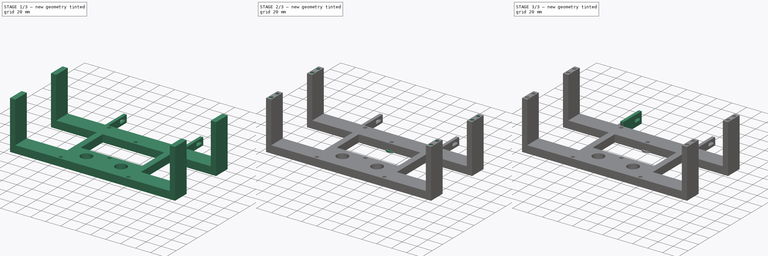
[diagram: build sequence overview — one tinted view per stage of 3, left to right]
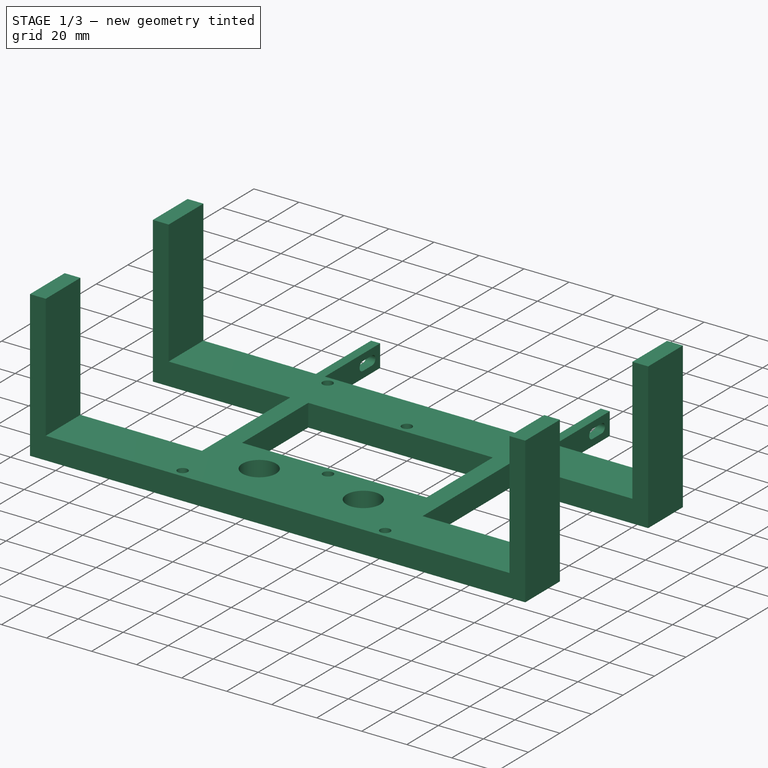
[diagram: stage 1 of 3 — iso view after this stage's code; geometry added in this stage tinted green]
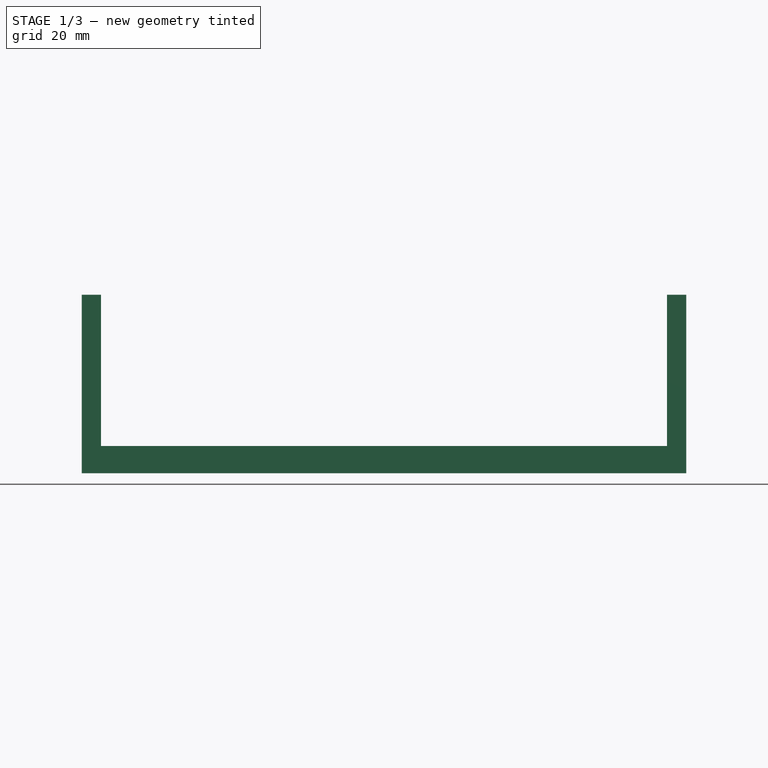
[diagram: stage 1 of 3 — front view after this stage's code; geometry added in this stage tinted green]
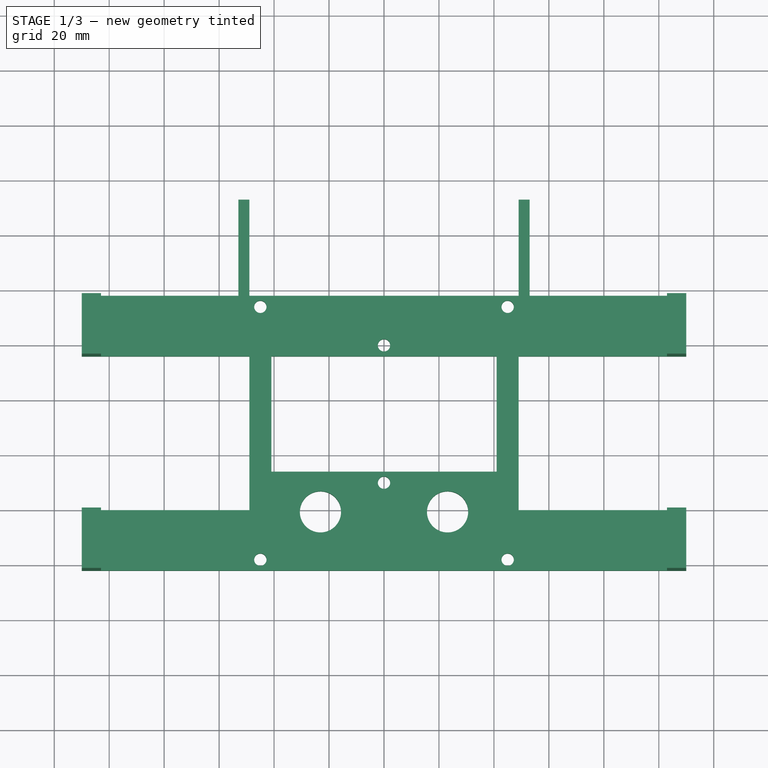
[diagram: stage 1 of 3 — top view after this stage's code; geometry added in this stage tinted green]
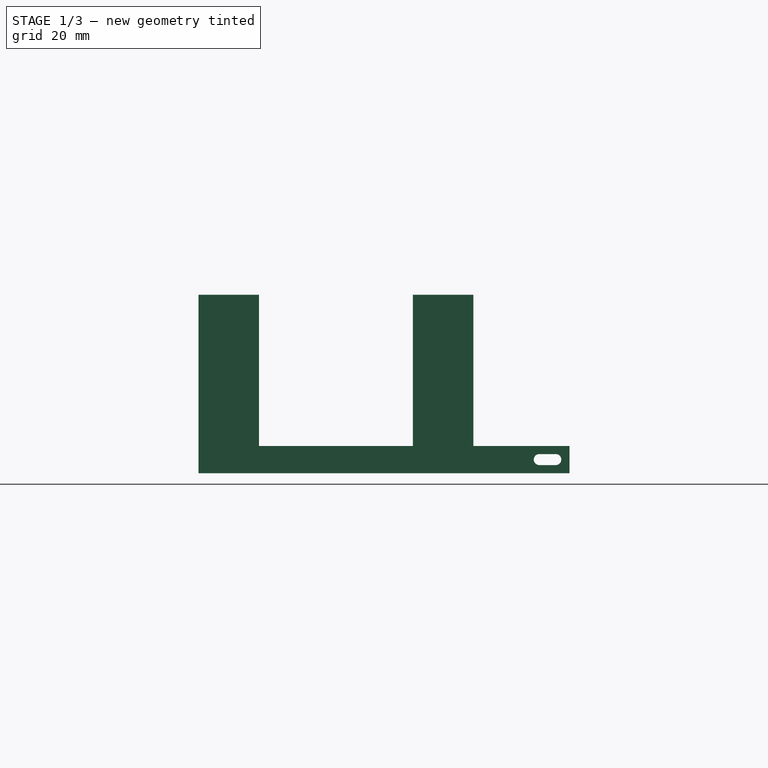
[diagram: stage 1 of 3 — right view after this stage's code; geometry added in this stage tinted green]
FCSTD DOCUMENT  (FreeCAD 0.21R33771 (Git))
Label: BodyMount
License: All rights reserved
LicenseURL: http://en.wikipedia.org/wiki/All_rights_reserved
objects: Sketcher::SketchObject×8, PartDesign::Pad×5, PartDesign::Pocket×3, PartDesign::Body×3, App::Part×3
note: 27 computed .brp shape members not serialized (recipe doc carries the construction recipe); baked Part::Feature solids carry a one-line shape summary decoded from their .brp

FEATURE [PartDesign::Body] Body001  label="BearingWasherBody"
  Group = -> [Sketch005,Pad003]
  Origin = -> Origin003
  Tip = -> Pad003
FEATURE [App::Part] Part001  label="BearingWasherPart"
  Group = -> [Body001]
  Origin = -> Origin002
FEATURE [Sketcher::SketchObject] Sketch006
  FullyConstrained = true
  MapMode = 5
  Support = -> [XY_Plane005]
  sketch-geometry (34):
    g0: LineSegment StartX=49 StartY=-82 StartZ=0 EndX=-49 EndY=-82 EndZ=0
    g1: LineSegment StartX=-49 StartY=18 StartZ=0 EndX=49 EndY=18 EndZ=0
    g2: Circle CenterX=-23.125 CenterY=-60.621 CenterZ=0 NormalX=0 NormalY=0 NormalZ=1 AngleXU=0 Radius=7.5
    g3: Circle CenterX=23.125 CenterY=-60.621 CenterZ=0 NormalX=0 NormalY=0 NormalZ=1 AngleXU=0 Radius=7.5
    g4: Circle CenterX=-45 CenterY=14 CenterZ=0 NormalX=0 NormalY=0 NormalZ=1 AngleXU=0 Radius=2.25
    g5: Circle CenterX=45 CenterY=14 CenterZ=0 NormalX=0 NormalY=0 NormalZ=1 AngleXU=0 Radius=2.25
    g6: Circle CenterX=45 CenterY=-78 CenterZ=0 NormalX=0 NormalY=0 NormalZ=1 AngleXU=0 Radius=2.25
    g7: Circle CenterX=-45 CenterY=-78 CenterZ=0 NormalX=0 NormalY=0 NormalZ=1 AngleXU=0 Radius=2.25
    g8: Circle CenterX=0 CenterY=0 CenterZ=0 NormalX=0 NormalY=0 NormalZ=1 AngleXU=0 Radius=2.25
    g9: Circle CenterX=0 CenterY=-50 CenterZ=0 NormalX=0 NormalY=0 NormalZ=1 AngleXU=0 Radius=2.25
    g10: LineSegment StartX=-41 StartY=-4 StartZ=0 EndX=41 EndY=-4 EndZ=0
    g11: LineSegment StartX=41 StartY=-4 StartZ=0 EndX=41 EndY=-46 EndZ=0
    g12: LineSegment StartX=41 StartY=-46 StartZ=0 EndX=-41 EndY=-46 EndZ=0
    g13: LineSegment StartX=-41 StartY=-46 StartZ=0 EndX=-41 EndY=-4 EndZ=0
    g14: LineSegment StartX=53 StartY=18 StartZ=0 EndX=110 EndY=18 EndZ=0
    g15: LineSegment StartX=110 StartY=18 StartZ=0 EndX=110 EndY=-4 EndZ=0
    g16: LineSegment StartX=110 StartY=-4 StartZ=0 EndX=49 EndY=-4 EndZ=0
    g17: LineSegment StartX=-110 StartY=18 StartZ=0 EndX=-110 EndY=-4 EndZ=0
    g18: LineSegment StartX=-110 StartY=-4 StartZ=0 EndX=-49 EndY=-4 EndZ=0
    g19: LineSegment StartX=49 StartY=-82 StartZ=0 EndX=110 EndY=-82 EndZ=0
    g20: LineSegment StartX=110 StartY=-82 StartZ=0 EndX=110 EndY=-60 EndZ=0
    g21: LineSegment StartX=110 StartY=-60 StartZ=0 EndX=49 EndY=-60 EndZ=0
    g22: LineSegment StartX=-49 StartY=-82 StartZ=0 EndX=-110 EndY=-82 EndZ=0
    g23: LineSegment StartX=-110 StartY=-82 StartZ=0 EndX=-110 EndY=-60 EndZ=0
    g24: LineSegment StartX=-110 StartY=-60 StartZ=0 EndX=-49 EndY=-60 EndZ=0
    g25: LineSegment StartX=-110 StartY=18 StartZ=0 EndX=-53 EndY=18 EndZ=0
    g26: LineSegment StartX=-49 StartY=-4 StartZ=0 EndX=-49 EndY=-60 EndZ=0
    g27: LineSegment StartX=49 StartY=-4 StartZ=0 EndX=49 EndY=-60 EndZ=0
    g28: LineSegment StartX=-49 StartY=18 StartZ=0 EndX=-49 EndY=53 EndZ=0
    g29: LineSegment StartX=-49 StartY=53 StartZ=0 EndX=-53 EndY=53 EndZ=0
    g30: LineSegment StartX=-53 StartY=53 StartZ=0 EndX=-53 EndY=18 EndZ=0
    g31: LineSegment StartX=49 StartY=18 StartZ=0 EndX=49 EndY=53 EndZ=0
    g32: LineSegment StartX=49 StartY=53 StartZ=0 EndX=53 EndY=53 EndZ=0
    g33: LineSegment StartX=53 StartY=53 StartZ=0 EndX=53 EndY=18 EndZ=0
  constraints (101):
    c: Horizontal(g0)
    c: Horizontal(g1)
    c: DistanceY(g-1,g1) = 18
    c: Equal(g2,g3)
    c: Diameter(g2) = 15
    c: DistanceX(g2,g-1) = 23.125
    c: DistanceX(g-1,g3) = 23.125
    c: DistanceY(g2,g3) = 0
    c: DistanceY(g2,g1) = 78.621
    c: DistanceX(g0,g0) = 98
    c: Equal(g4,g5)
    c: Equal(g4,g6)
    c: Equal(g4,g7)
    c: Diameter(g4) = 4.5
    c: DistanceY(g6,g5) = 92
    c: DistanceY(g7,g4) = 92
    c: DistanceY(g5,g4) = 0
    c: DistanceY(g-1,g4) = 14
    c: DistanceX(g4,g5) = 90
    c: DistanceX(g7,g6) = 90
    c: DistanceX(g4,g-1) = 45
    c: DistanceX(g7,g4) = 0
    c: Coincident(g8,g-1)
    c: PointOnObject(g9,g-2)
    c: Equal(g8,g9)
    c: Diameter(g8) = 4.5
    c: DistanceY(g9,g8) = 50
    c: Coincident(g10,g11)
    c: Coincident(g11,g12)
    c: Coincident(g12,g13)
    c: Coincident(g13,g10)
    c: Horizontal(g10)
    c: Horizontal(g12)
    c: Vertical(g11)
    c: Vertical(g13)
    c: DistanceX(g10,g10) = 82
    c: DistanceY(g13,g13) = 42
    c: DistanceX(g10,g8) = 41
    c: DistanceY(g10,g8) = 4
    c: DistanceX(g1,g8) = 49
    c: DistanceY(g0,g1) = 100
    c: Coincident(g14,g15)
    c: Coincident(g15,g16)
    c: Horizontal(g14)
    c: Horizontal(g16)
    c: Vertical(g15)
    c: Coincident(g17,g18)
    c: Horizontal(g18)
    c: Vertical(g17)
    c: Coincident(g19,g20)
    c: Coincident(g20,g21)
    c: Horizontal(g19)
    c: Horizontal(g21)
    c: Vertical(g20)
    c: Coincident(g19,g0)
    c: Coincident(g22,g23)
    c: Coincident(g23,g24)
    c: Horizontal(g22)
    c: Horizontal(g24)
    c: Vertical(g23)
    c: Coincident(g22,g0)
    c: DistanceY(g15,g15) = 22
    c: DistanceY(g17,g17) = 22
    c: DistanceY(g23,g23) = 22
    c: DistanceY(g20,g20) = 22
    c: Coincident(g25,g17)
    c: Horizontal(g25)
    c: Coincident(g26,g18)
    c: Coincident(g26,g24)
    c: Vertical(g26)
    c: Coincident(g27,g16)
    c: Coincident(g27,g21)
    c: Vertical(g27)
    c: DistanceX(g24,g8) = 49
    c: Coincident(g28,g1)
    c: Vertical(g28)
    c: Coincident(g29,g28)
    c: Horizontal(g29)
    c: Vertical(g30)
    c: DistanceX(g29,g29) = 4
    c: DistanceY(g28,g28) = 35
    c: Coincident(g30,g29)
    c: Coincident(g25,g30)
    c: DistanceY(g30,g30) = 35
    c: Coincident(g31,g1)
    c: Vertical(g31)
    c: Coincident(g32,g31)
    c: Horizontal(g32)
    c: Coincident(g33,g32)
    c: Vertical(g33)
    c: DistanceY(g33,g33) = 35
    c: DistanceX(g32,g32) = 4
    c: Coincident(g14,g33)
    c: DistanceY(g5,g14) = 4
    c: DistanceX(g18,g18) = 61
    c: DistanceX(g0,g2) = 25.875
    c: DistanceX(g22,g22) = 61
    c: DistanceX(g19,g19) = 61
    c: DistanceX(g8,g16) = 49
    c: DistanceX(g16,g16) = 61
    c: DistanceX(g8,g1) = 49
FEATURE [PartDesign::Pad] Pad004  label="SpacerMountPad"
  Direction = (0,0,1)
  Length = 9.91
  Length2 = 10
  Profile = -> Sketch006
  ReferenceAxis = -> Sketch006 [N_Axis]
  Type = 0
FEATURE [Sketcher::SketchObject] Sketch007
  FullyConstrained = true
  MapMode = 5
  Placement = pos=(-53,0,0) rot=(0.57735,-0.57735,-0.57735;2.0944rad)
  Support = -> [Pad004]
  sketch-geometry (4):
    g0: ArcOfCircle CenterX=-48 CenterY=4.955 CenterZ=0 NormalX=0 NormalY=0 NormalZ=1 AngleXU=0 Radius=2 StartAngle=1.5708 EndAngle=4.71239
    g1: ArcOfCircle CenterX=-42 CenterY=4.955 CenterZ=0 NormalX=0 NormalY=0 NormalZ=1 AngleXU=0 Radius=2 StartAngle=4.71239 EndAngle=7.85398
    g2: LineSegment StartX=-48 StartY=2.955 StartZ=0 EndX=-42 EndY=2.955 EndZ=0
    g3: LineSegment StartX=-48 StartY=6.955 StartZ=0 EndX=-42 EndY=6.955 EndZ=0
  constraints (14):
    c: Diameter(g0) = 4
    c: Coincident(g2,g0)
    c: Coincident(g2,g1)
    c: Coincident(g3,g0)
    c: Coincident(g3,g1)
    c: DistanceY(g1,g1) = 2
    c: DistanceY(g0,g0) = 2
    c: DistanceY(g0,g0) = 2
    c: DistanceX(g1,g1) = 0
    c: DistanceY(g0,g1) = 0
    c: DistanceX(g1,g1) = 0
    c: DistanceX(g3,g3) = 6
    c: DistanceY(g-1,g1) = 4.955
    c: DistanceX(g1,g-1) = 42
FEATURE [PartDesign::Pocket] Pocket  label="M4Pockets"
  BaseFeature = -> Pad004
  Direction = (1,0,0)
  Length = 5
  Length2 = 5
  Profile = -> Sketch007
  ReferenceAxis = -> Sketch007 [N_Axis]
  Type = 1
FEATURE [Sketcher::SketchObject] Sketch008
  FullyConstrained = true
  MapMode = 5
  Placement = pos=(0,0,9.91) rot=(0,0,1;0rad)
  Support = -> [Pocket]
  sketch-geometry (16):
    g0: LineSegment StartX=-110 StartY=18 StartZ=0 EndX=-103 EndY=18 EndZ=0
    g1: LineSegment StartX=-103 StartY=18 StartZ=0 EndX=-103 EndY=-4 EndZ=0
    g2: LineSegment StartX=-103 StartY=-4 StartZ=0 EndX=-110 EndY=-4 EndZ=0
    g3: LineSegment StartX=-110 StartY=-4 StartZ=0 EndX=-110 EndY=18 EndZ=0
    g4: LineSegment StartX=110 StartY=18 StartZ=0 EndX=103 EndY=18 EndZ=0
    g5: LineSegment StartX=103 StartY=18 StartZ=0 EndX=103 EndY=-4 EndZ=0
    g6: LineSegment StartX=103 StartY=-4 StartZ=0 EndX=110 EndY=-4 EndZ=0
    g7: LineSegment StartX=110 StartY=-4 StartZ=0 EndX=110 EndY=18 EndZ=0
    g8: LineSegment StartX=-110 StartY=-60 StartZ=0 EndX=-103 EndY=-60 EndZ=0
    g9: LineSegment StartX=-103 StartY=-60 StartZ=0 EndX=-103 EndY=-82 EndZ=0
    g10: LineSegment StartX=-103 StartY=-82 StartZ=0 EndX=-110 EndY=-82 EndZ=0
    g11: LineSegment StartX=-110 StartY=-82 StartZ=0 EndX=-110 EndY=-60 EndZ=0
    g12: LineSegment StartX=110 StartY=-60 StartZ=0 EndX=103 EndY=-60 EndZ=0
    g13: LineSegment StartX=103 StartY=-60 StartZ=0 EndX=103 EndY=-82 EndZ=0
    g14: LineSegment StartX=103 StartY=-82 StartZ=0 EndX=110 EndY=-82 EndZ=0
    g15: LineSegment StartX=110 StartY=-82 StartZ=0 EndX=110 EndY=-60 EndZ=0
  constraints (48):
    c: Coincident(g0,g1)
    c: Coincident(g1,g2)
    c: Coincident(g2,g3)
    c: Coincident(g3,g0)
    c: Horizontal(g0)
    c: Horizontal(g2)
    c: Vertical(g1)
    c: Vertical(g3)
    c: Coincident(g4,g5)
    c: Coincident(g5,g6)
    c: Coincident(g6,g7)
    c: Coincident(g7,g4)
    c: Horizontal(g4)
    c: Horizontal(g6)
    c: Vertical(g5)
    c: Vertical(g7)
    c: Coincident(g8,g9)
    c: Coincident(g9,g10)
    c: Coincident(g10,g11)
    c: Coincident(g11,g8)
    c: Horizontal(g8)
    c: Horizontal(g10)
    c: Vertical(g9)
    c: Vertical(g11)
    c: Coincident(g12,g13)
    c: Coincident(g13,g14)
    c: Coincident(g14,g15)
    c: Coincident(g15,g12)
    c: Horizontal(g12)
    c: Horizontal(g14)
    c: Vertical(g13)
    c: Vertical(g15)
    c: DistanceY(g7,g7) = 22
    c: DistanceY(g15,g15) = 22
    c: DistanceY(g11,g11) = 22
    c: DistanceY(g3,g3) = 22
    c: DistanceX(g0,g0) = 7
    c: DistanceX(g4,g4) = 7
    c: DistanceX(g14,g14) = 7
    c: DistanceX(g8,g8) = 7
    c: DistanceX(g1,g-1) = 103
    c: DistanceX(g-1,g5) = 103
    c: DistanceX(g-1,g12) = 103
    c: DistanceX(g8,g-1) = 103
    c: DistanceY(g-1,g0) = 18
    c: DistanceY(g-1,g4) = 18
    c: DistanceY(g8,g-1) = 60
    c: DistanceY(g12,g-1) = 60
FEATURE [PartDesign::Pad] Pad005  label="LegsPad"
  BaseFeature = -> Pocket
  Direction = (0,0,1)
  Length = 55
  Length2 = 10
  Profile = -> Sketch008
  ReferenceAxis = -> Sketch008 [N_Axis]
  Type = 0
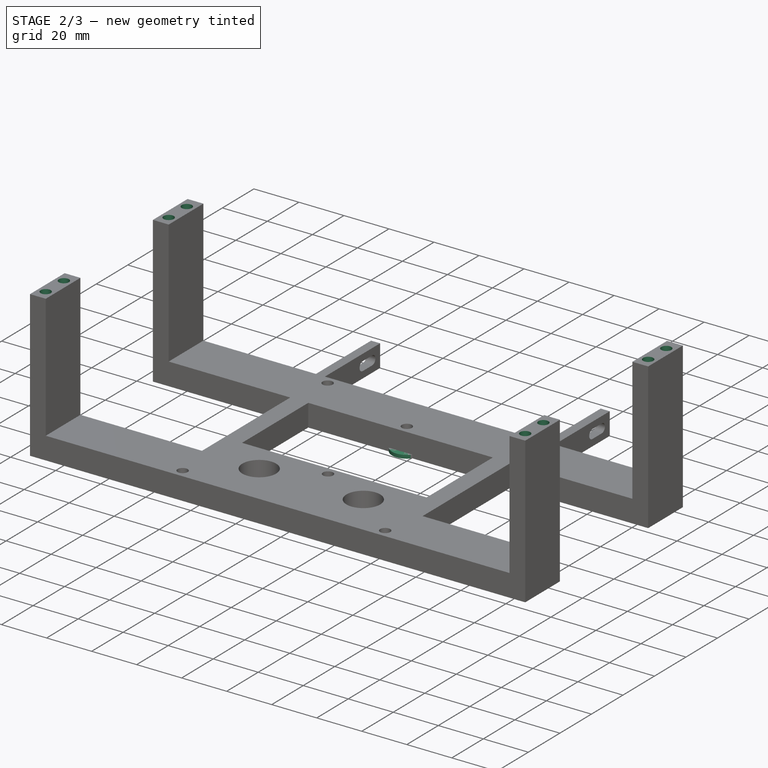
[diagram: stage 2 of 3 — iso view after this stage's code; geometry added in this stage tinted green]
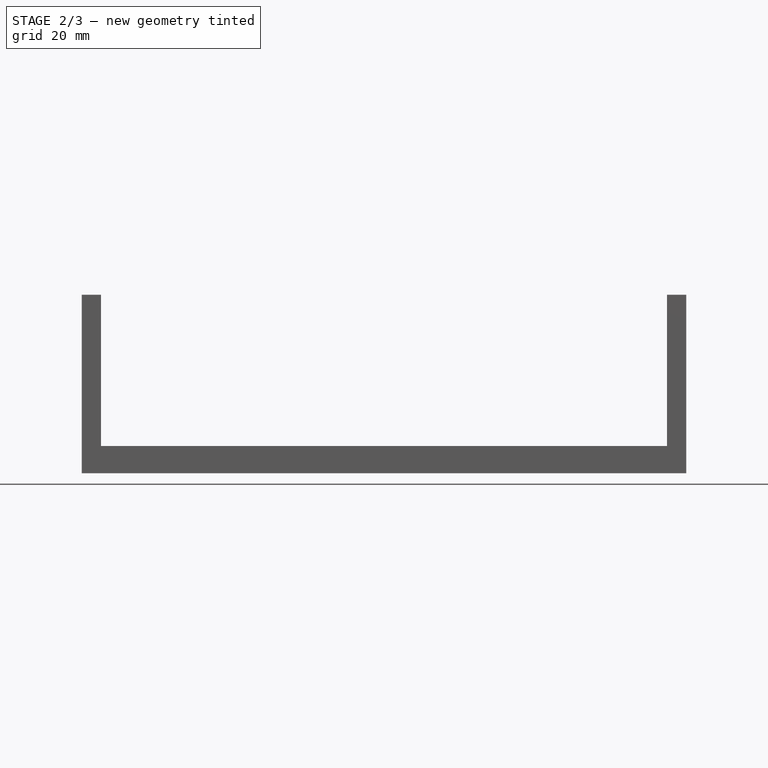
[diagram: stage 2 of 3 — front view after this stage's code; geometry added in this stage tinted green]
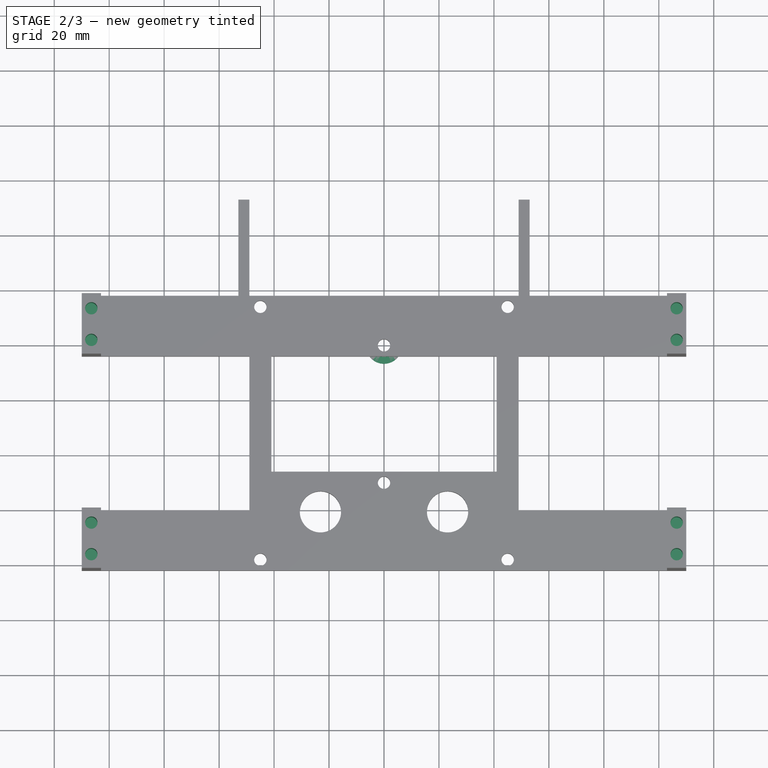
[diagram: stage 2 of 3 — top view after this stage's code; geometry added in this stage tinted green]
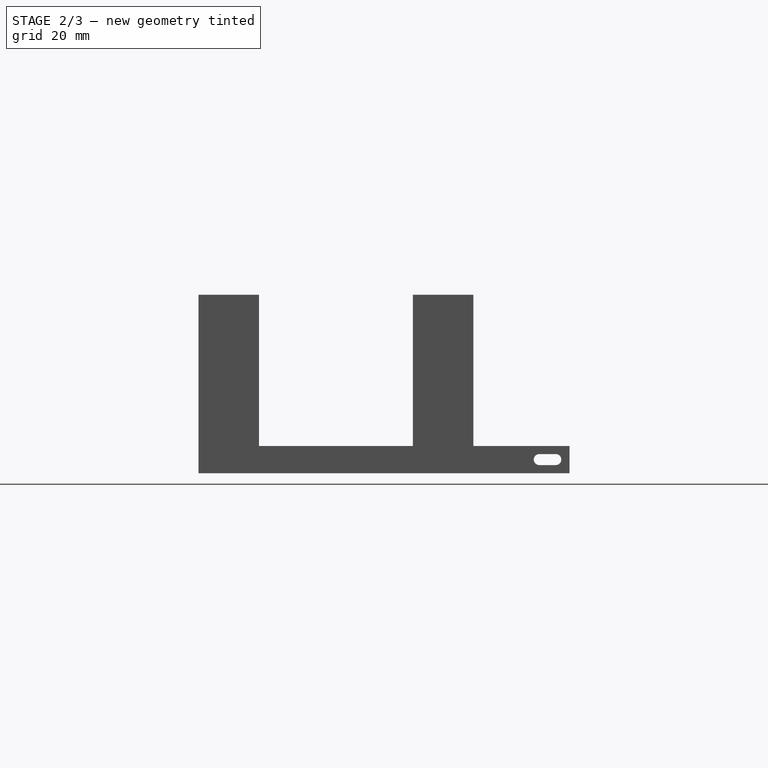
[diagram: stage 2 of 3 — right view after this stage's code; geometry added in this stage tinted green]
FEATURE [PartDesign::Body] Body  label="BodyMountBody"
  Group = -> [Sketch,Pad,Sketch003,Pad002,Sketch004,Pocket001]
  Origin = -> Origin001
  Tip = -> Pocket001
FEATURE [App::Part] Part  label="BodyMountPart"
  Group = -> [Body]
  Origin = -> Origin
FEATURE [Sketcher::SketchObject] Sketch005
  FullyConstrained = true
  MapMode = 5
  Support = -> [XY_Plane003]
  sketch-geometry (2):
    g0: Circle CenterX=0 CenterY=0 CenterZ=0 NormalX=0 NormalY=0 NormalZ=1 AngleXU=0 Radius=6.6
    g1: Circle CenterX=0 CenterY=0 CenterZ=0 NormalX=0 NormalY=0 NormalZ=1 AngleXU=0 Radius=4.1
  constraints (4):
    c: Coincident(g0,g-1)
    c: Coincident(g1,g0)
    c: Diameter(g1) = 8.2
    c: Diameter(g0) = 13.2
FEATURE [PartDesign::Pad] Pad003  label="BearingWasherPad"
  Direction = (0,0,1)
  Length = 1.5
  Length2 = 10
  Profile = -> Sketch005
  ReferenceAxis = -> Sketch005 [N_Axis]
  Type = 0
FEATURE [Sketcher::SketchObject] Sketch009
  FullyConstrained = true
  MapMode = 5
  Placement = pos=(0,0,64.91) rot=(0,0,1;0rad)
  Support = -> [Pad005]
  sketch-geometry (8):
    g0: Circle CenterX=-106.5 CenterY=12.5 CenterZ=0 NormalX=0 NormalY=0 NormalZ=1 AngleXU=0 Radius=2.25
    g1: Circle CenterX=-106.5 CenterY=1 CenterZ=0 NormalX=0 NormalY=0 NormalZ=1 AngleXU=0 Radius=2.25
    g2: Circle CenterX=106.5 CenterY=12.5 CenterZ=0 NormalX=0 NormalY=0 NormalZ=1 AngleXU=0 Radius=2.25
    g3: Circle CenterX=106.5 CenterY=1 CenterZ=0 NormalX=0 NormalY=0 NormalZ=1 AngleXU=0 Radius=2.25
    g4: Circle CenterX=106.5 CenterY=-65.5 CenterZ=0 NormalX=0 NormalY=0 NormalZ=1 AngleXU=0 Radius=2.25
    g5: Circle CenterX=106.5 CenterY=-77 CenterZ=0 NormalX=0 NormalY=0 NormalZ=1 AngleXU=0 Radius=2.25
    g6: Circle CenterX=-106.5 CenterY=-65.5 CenterZ=0 NormalX=0 NormalY=0 NormalZ=1 AngleXU=0 Radius=2.25
    g7: Circle CenterX=-106.5 CenterY=-77 CenterZ=0 NormalX=0 NormalY=0 NormalZ=1 AngleXU=0 Radius=2.25
  constraints (18):
    c: Equal(g0, g1-g7) x7
    c: Diameter(g0) = 4.5
    c: DistanceX(g0,g1) = 0
    c: DistanceX(g6,g7) = 0
    c: DistanceX(g5,g4) = 0
    c: DistanceX(g2,g3) = 0
    c: DistanceX(g-1,g2) = 106.5
    c: DistanceX(g-1,g4) = 106.5
    c: DistanceX(g0,g-1) = 106.5
    c: DistanceX(g6,g-1) = 106.5
    c: DistanceY(g1,g0) = 11.5
    c: DistanceY(g3,g2) = 11.5
    c: DistanceY(g5,g4) = 11.5
    c: DistanceY(g7,g6) = 11.5
    c: DistanceY(g-1,g0) = 12.5
    c: DistanceY(g-1,g2) = 12.5
    c: DistanceY(g6,g-1) = 65.5
    c: DistanceY(g4,g-1) = 65.5
FEATURE [PartDesign::Pocket] Pocket002  label="LegPockets"
  BaseFeature = -> Pad005
  Direction = (0,0,-1)
  Length = 20
  Length2 = 5
  Profile = -> Sketch009
  ReferenceAxis = -> Sketch009 [N_Axis]
  Type = 0
FEATURE [PartDesign::Body] Body002  label="SpacerMountBody"
  Group = -> [Sketch006,Pad004,Sketch007,Pocket,Sketch008,Pad005,Sketch009,Pocket002]
  Origin = -> Origin005
  Tip = -> Pocket002
FEATURE [App::Part] Part002  label="SpacerMountPart"
  Group = -> [Body002]
  Origin = -> Origin004
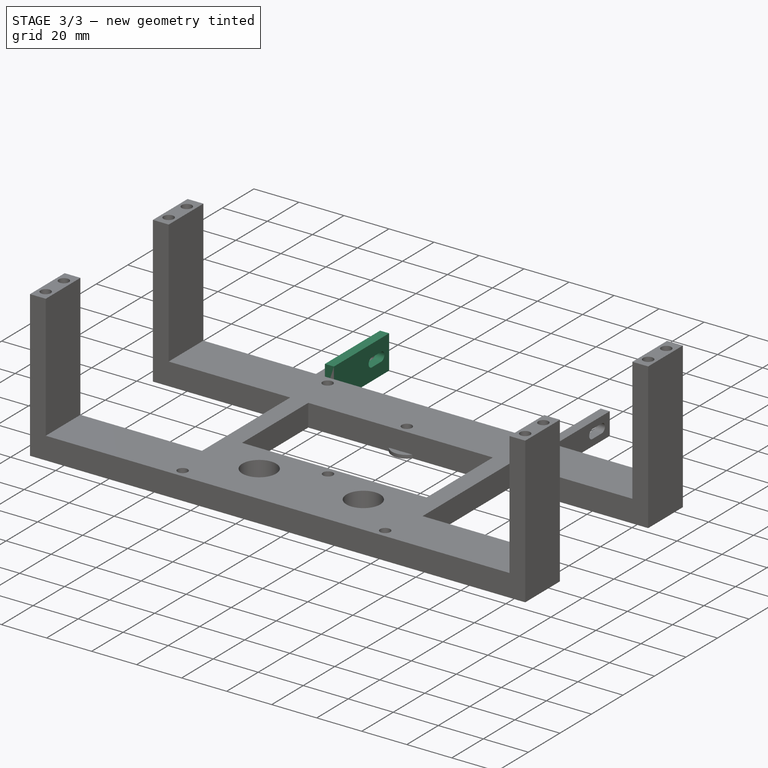
[diagram: stage 3 of 3 — iso view after this stage's code; geometry added in this stage tinted green]
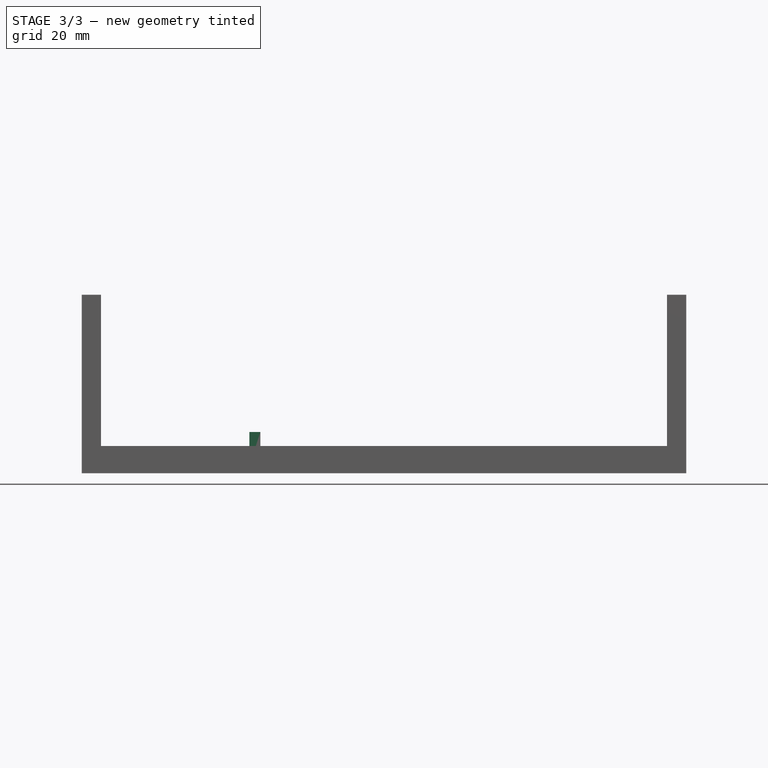
[diagram: stage 3 of 3 — front view after this stage's code; geometry added in this stage tinted green]
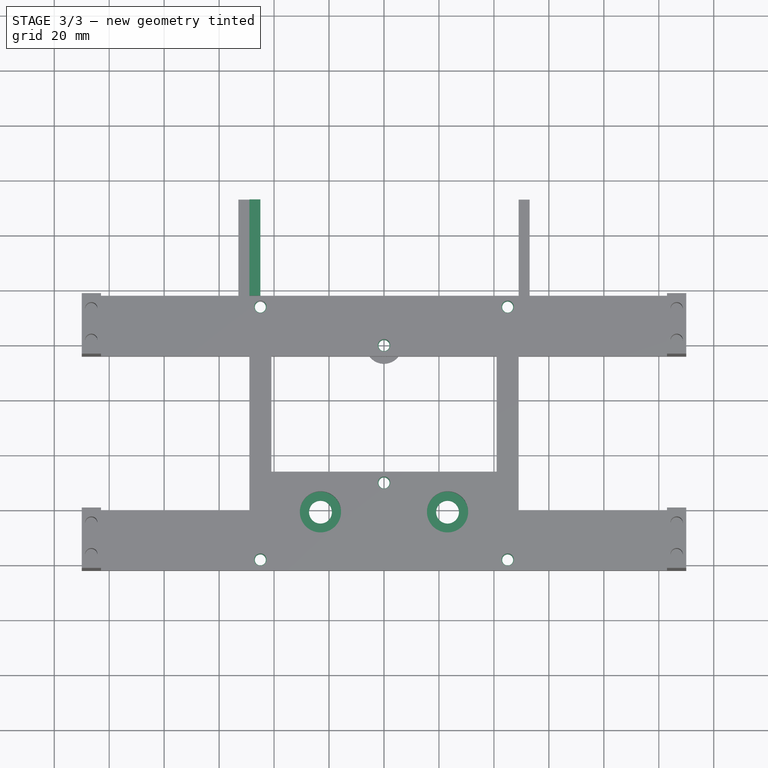
[diagram: stage 3 of 3 — top view after this stage's code; geometry added in this stage tinted green]
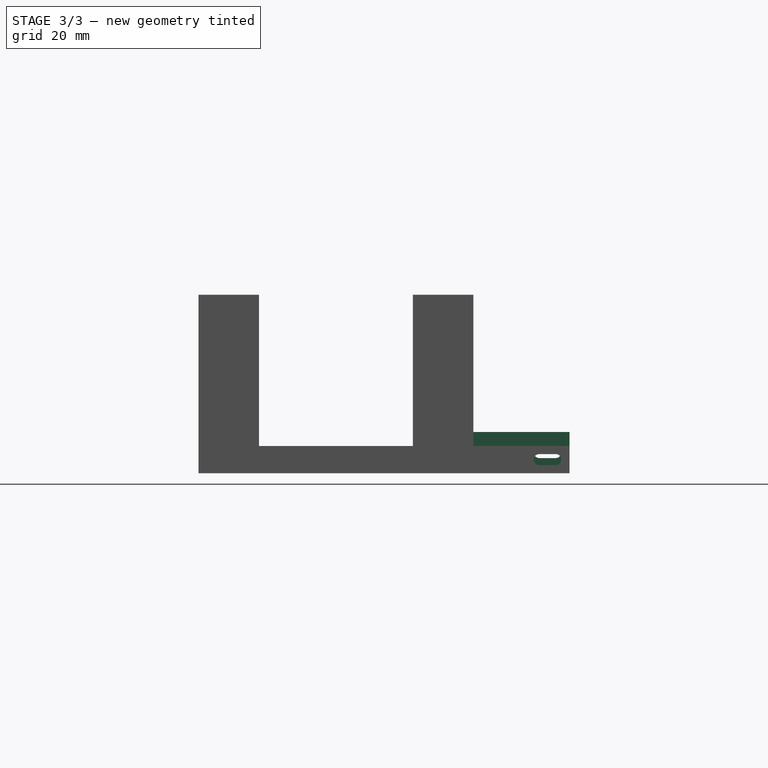
[diagram: stage 3 of 3 — right view after this stage's code; geometry added in this stage tinted green]
FEATURE [Sketcher::SketchObject] Sketch
  FullyConstrained = true
  MapMode = 5
  Support = -> [XY_Plane001]
  sketch-geometry (18):
    g0: LineSegment StartX=-49 StartY=53 StartZ=0 EndX=-45 EndY=53 EndZ=0
    g1: LineSegment StartX=49 StartY=18 StartZ=0 EndX=49 EndY=-82 EndZ=0
    g2: LineSegment StartX=49 StartY=-82 StartZ=0 EndX=-49 EndY=-82 EndZ=0
    g3: LineSegment StartX=-49 StartY=-82 StartZ=0 EndX=-49 EndY=53 EndZ=0
    g4: LineSegment StartX=-45 StartY=53 StartZ=0 EndX=-45 EndY=18 EndZ=0
    g5: LineSegment StartX=-45 StartY=18 StartZ=0 EndX=49 EndY=18 EndZ=0
    g6: Circle CenterX=-23.125 CenterY=-60.621 CenterZ=0 NormalX=0 NormalY=0 NormalZ=1 AngleXU=0 Radius=4.15
    g7: Circle CenterX=23.125 CenterY=-60.621 CenterZ=0 NormalX=0 NormalY=0 NormalZ=1 AngleXU=0 Radius=4.15
    g8: Circle CenterX=-45 CenterY=14 CenterZ=0 NormalX=0 NormalY=0 NormalZ=1 AngleXU=0 Radius=2
    g9: Circle CenterX=45 CenterY=14 CenterZ=0 NormalX=0 NormalY=0 NormalZ=1 AngleXU=0 Radius=2
    g10: Circle CenterX=45 CenterY=-78 CenterZ=0 NormalX=0 NormalY=0 NormalZ=1 AngleXU=0 Radius=2
    g11: Circle CenterX=-45 CenterY=-78 CenterZ=0 NormalX=0 NormalY=0 NormalZ=1 AngleXU=0 Radius=2
    g12: Circle CenterX=0 CenterY=0 CenterZ=0 NormalX=0 NormalY=0 NormalZ=1 AngleXU=0 Radius=2
    g13: Circle CenterX=0 CenterY=-50 CenterZ=0 NormalX=0 NormalY=0 NormalZ=1 AngleXU=0 Radius=2
    g14: LineSegment StartX=-41 StartY=-4 StartZ=0 EndX=41 EndY=-4 EndZ=0
    g15: LineSegment StartX=41 StartY=-4 StartZ=0 EndX=41 EndY=-46 EndZ=0
    g16: LineSegment StartX=41 StartY=-46 StartZ=0 EndX=-41 EndY=-46 EndZ=0
    g17: LineSegment StartX=-41 StartY=-46 StartZ=0 EndX=-41 EndY=-4 EndZ=0
  constraints (53):
    c: Coincident(g1,g2)
    c: Coincident(g2,g3)
    c: Coincident(g3,g0)
    c: Horizontal(g0)
    c: Horizontal(g2)
    c: Vertical(g1)
    c: Vertical(g3)
    c: Coincident(g4,g5)
    c: Horizontal(g5)
    c: Vertical(g4)
    c: DistanceX(g4,g-1) = 45
    c: DistanceY(g-1,g4) = 18
    c: Coincident(g0,g4)
    c: Coincident(g1,g5)
    c: DistanceX(g0,g0) = 4
    c: Equal(g6,g7)
    c: Diameter(g6) = 8.3
    c: DistanceX(g6,g-1) = 23.125
    c: DistanceX(g-1,g7) = 23.125
    c: DistanceY(g6,g7) = 0
    c: DistanceY(g6,g4) = 78.621
    c: DistanceY(g4,g4) = 35
    c: DistanceY(g1,g1) = 100
    c: DistanceX(g2,g2) = 98
    c: Equal(g8,g9)
    c: Equal(g8,g10)
    c: Equal(g8,g11)
    c: Diameter(g8) = 4
    c: DistanceY(g10,g9) = 92
    c: DistanceY(g11,g8) = 92
    c: DistanceY(g9,g8) = 0
    c: DistanceY(g-1,g8) = 14
    c: DistanceX(g8,g9) = 90
    c: DistanceX(g11,g10) = 90
    c: DistanceX(g8,g-1) = 45
    c: DistanceX(g11,g8) = 0
    c: Coincident(g12,g-1)
    c: PointOnObject(g13,g-2)
    c: Equal(g12,g13)
    c: Diameter(g12) = 4
    c: DistanceY(g13,g12) = 50
    c: Coincident(g14,g15)
    c: Coincident(g15,g16)
    c: Coincident(g16,g17)
    c: Coincident(g17,g14)
    c: Horizontal(g14)
    c: Horizontal(g16)
    c: Vertical(g15)
    c: Vertical(g17)
    c: DistanceX(g14,g14) = 82
    c: DistanceY(g17,g17) = 42
    c: DistanceX(g14,g12) = 41
    c: DistanceY(g14,g12) = 4
FEATURE [PartDesign::Pad] Pad  label="BodyMountPad"
  Direction = (0,0,1)
  Length = 2.525
  Length2 = 10
  Profile = -> Sketch
  ReferenceAxis = -> Sketch [N_Axis]
  Type = 0
FEATURE [Sketcher::SketchObject] Sketch003
  FullyConstrained = true
  MapMode = 5
  Placement = pos=(0,0,2.525) rot=(0,0,1;0rad)
  sketch-geometry (4):
    g0: LineSegment StartX=-49 StartY=53 StartZ=0 EndX=-45 EndY=53 EndZ=0
    g1: LineSegment StartX=-45 StartY=53 StartZ=0 EndX=-45 EndY=18 EndZ=0
    g2: LineSegment StartX=-45 StartY=18 StartZ=0 EndX=-49 EndY=18 EndZ=0
    g3: LineSegment StartX=-49 StartY=18 StartZ=0 EndX=-49 EndY=53 EndZ=0
  constraints (12):
    c: Coincident(g0,g1)
    c: Coincident(g1,g2)
    c: Coincident(g2,g3)
    c: Coincident(g3,g0)
    c: Horizontal(g0)
    c: Horizontal(g2)
    c: Vertical(g1)
    c: Vertical(g3)
    c: DistanceX(g0,g0) = 4
    c: DistanceY(g3,g3) = 35
    c: DistanceY(g-1,g1) = 18
    c: DistanceX(g1,g-1) = 45
FEATURE [PartDesign::Pad] Pad002  label="MotorMountPad"
  BaseFeature = -> Pad
  Direction = (0,0,1)
  Length = 12.475
  Length2 = 10
  Profile = -> Sketch003
  ReferenceAxis = -> Sketch003 [N_Axis]
  Type = 0
FEATURE [Sketcher::SketchObject] Sketch004
  FullyConstrained = true
  MapMode = 5
  Placement = pos=(-49,0,0) rot=(0.57735,-0.57735,-0.57735;2.0944rad)
  Support = -> [Pad002]
  sketch-geometry (4):
    g0: ArcOfCircle CenterX=-48 CenterY=7.5 CenterZ=0 NormalX=0 NormalY=0 NormalZ=1 AngleXU=0 Radius=2 StartAngle=1.5708 EndAngle=4.71239
    g1: ArcOfCircle CenterX=-42 CenterY=7.5 CenterZ=0 NormalX=0 NormalY=0 NormalZ=1 AngleXU=0 Radius=2 StartAngle=4.71239 EndAngle=7.85398
    g2: LineSegment StartX=-48 StartY=5.5 StartZ=0 EndX=-42 EndY=5.5 EndZ=0
    g3: LineSegment StartX=-48 StartY=9.5 StartZ=0 EndX=-42 EndY=9.5 EndZ=0
  constraints (14):
    c: Diameter(g0) = 4
    c: Coincident(g2,g0)
    c: Coincident(g2,g1)
    c: Coincident(g3,g0)
    c: Coincident(g3,g1)
    c: DistanceY(g1,g1) = 2
    c: DistanceY(g0,g0) = 2
    c: DistanceY(g0,g0) = 2
    c: DistanceX(g1,g1) = 0
    c: DistanceY(g0,g1) = 0
    c: DistanceX(g1,g1) = 0
    c: DistanceX(g3,g3) = 6
    c: DistanceY(g-1,g1) = 7.5
    c: DistanceX(g1,g-1) = 42
FEATURE [PartDesign::Pocket] Pocket001  label="M4Pocket"
  BaseFeature = -> Pad002
  Direction = (1,0,0)
  Length = 5
  Length2 = 5
  Profile = -> Sketch004
  ReferenceAxis = -> Sketch004 [N_Axis]
  Type = 0
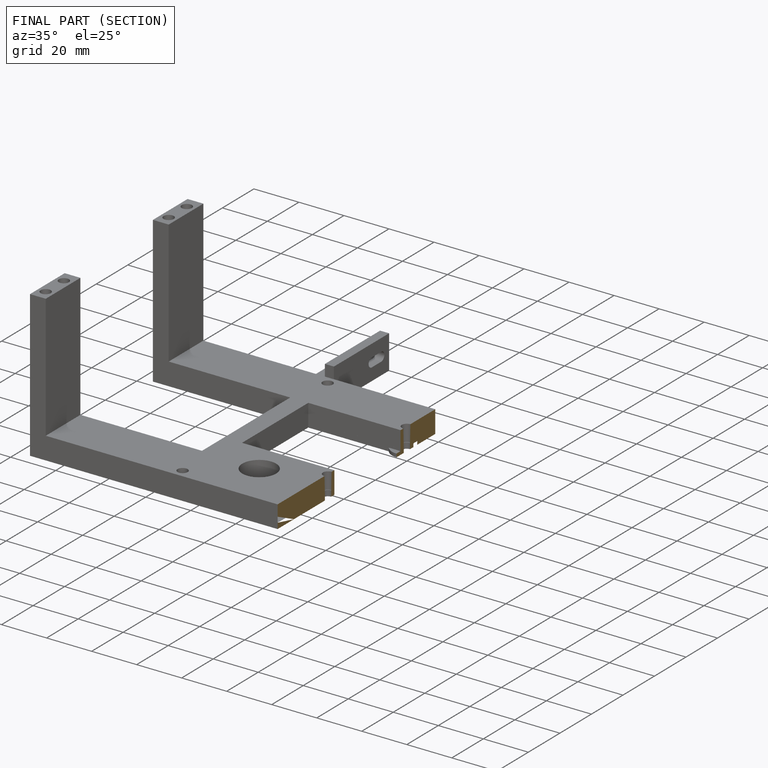
[diagram: finished part — half-section view (interior)]
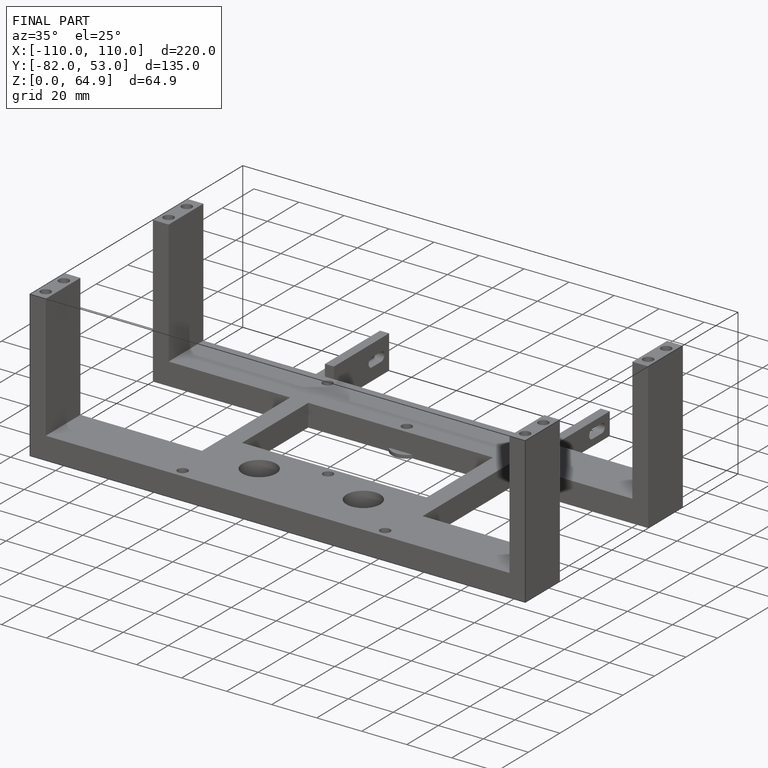
[diagram: finished part — iso view with bounding-box wireframe]
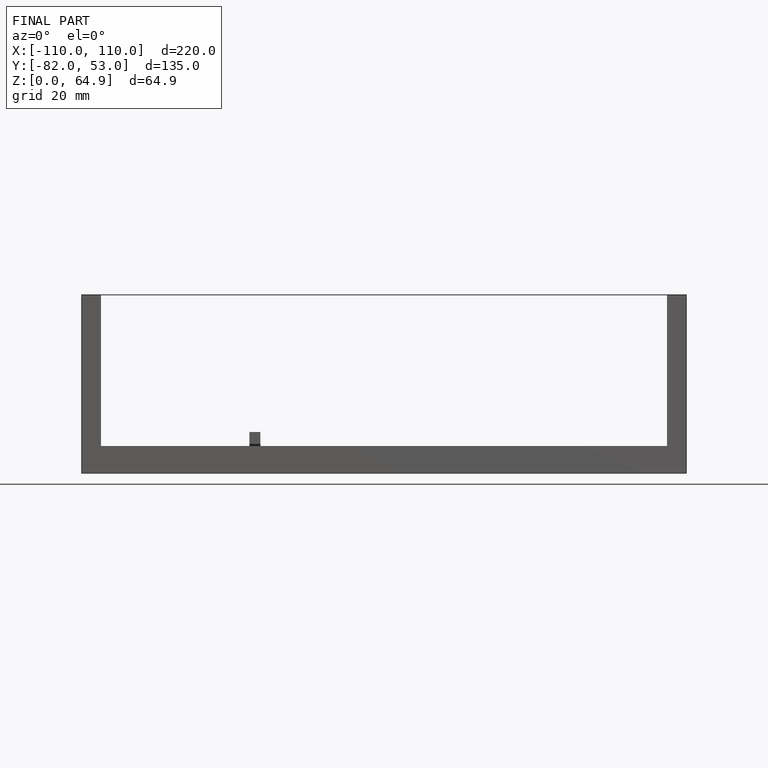
[diagram: finished part — front view with bounding-box wireframe]
